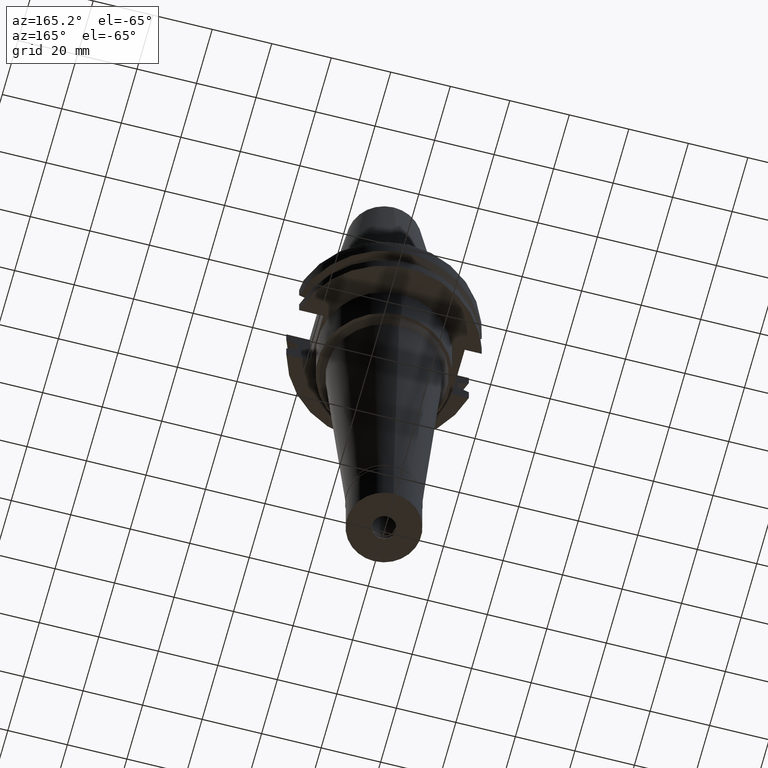
[diagram: clean part render]
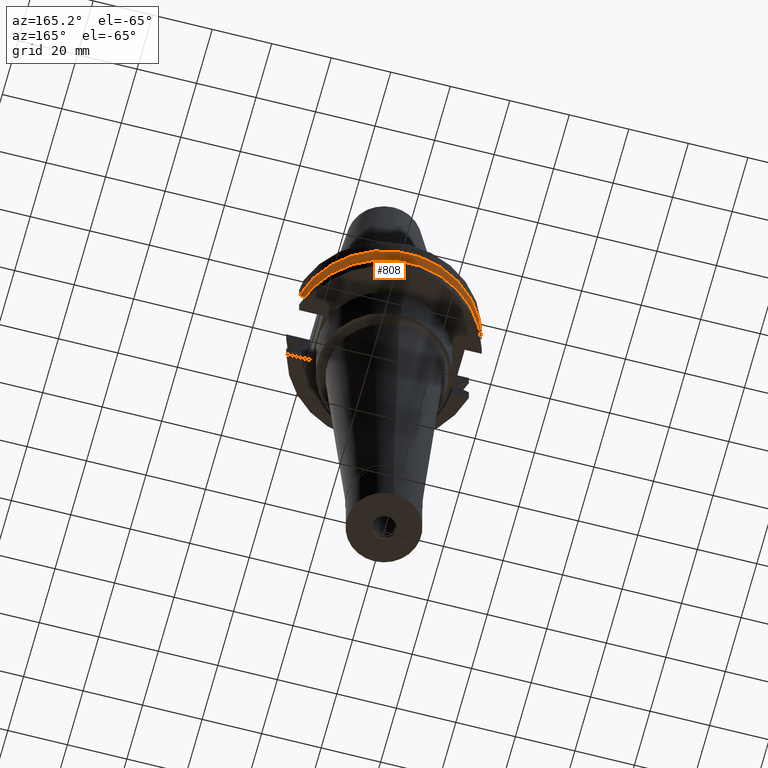
[diagram: same view with one face highlighted and labeled with its STEP entity id]
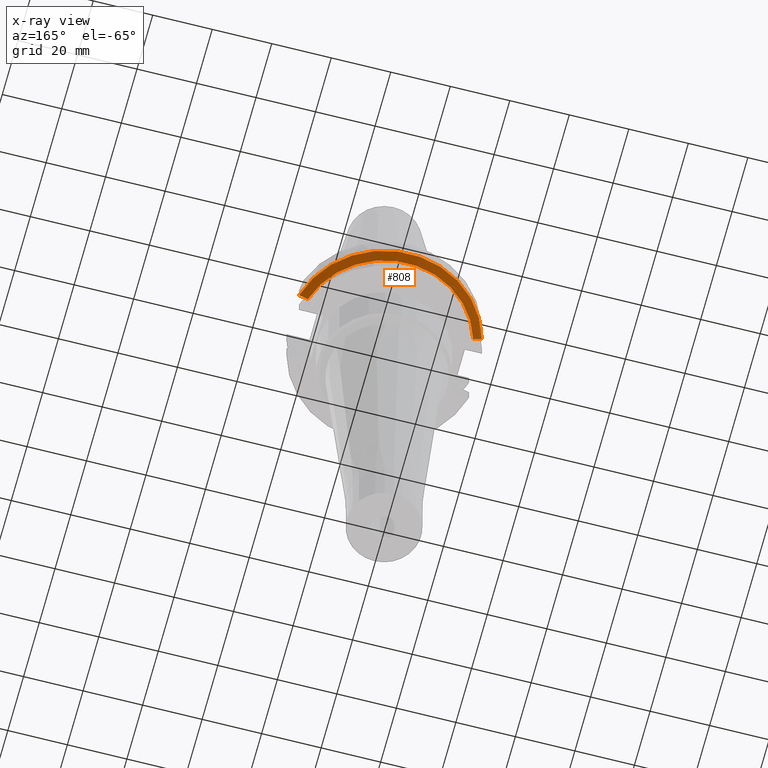
[diagram: x-ray of the same camera — body ghosted, the highlighted face saturated]
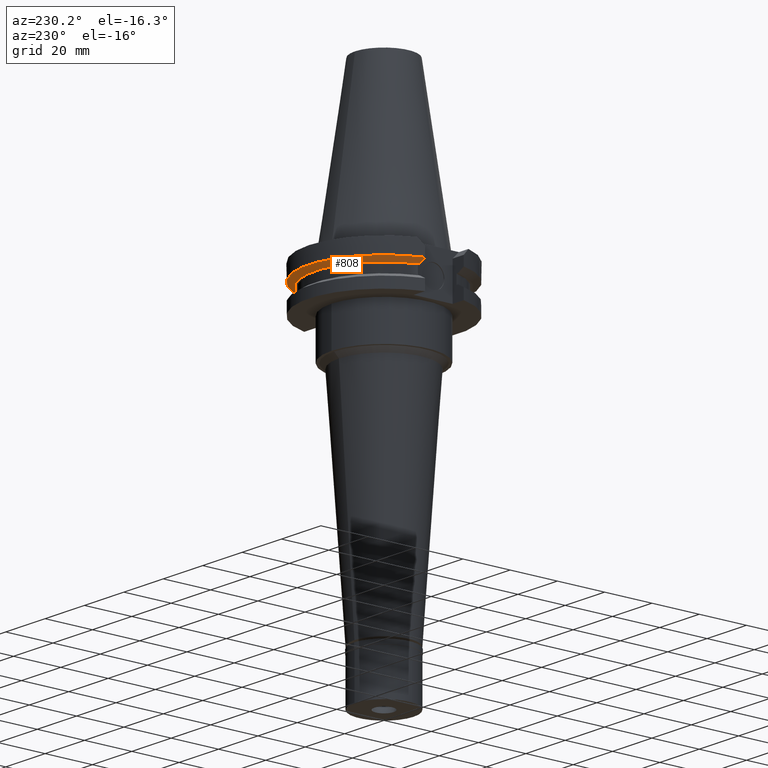
[diagram: same view with one face highlighted and labeled with its STEP entity id]
A machine part, auxiliary view. The second image highlights one B-rep face of the part: STEP entity #808.
The next image is the same camera in x-ray: the body ghosted, the highlighted face saturated — about 0% of this face is hidden behind the body in this view.
A second angle (auxiliary view) of the same face is appended — the face is thin or edge-on in the first view.
In plain terms, the highlighted conical surface has half-angle 60 deg.
Its self-contained STEP definition (entity closure, byte-faithful):
#94 = VERTEX_POINT ( 'NONE', #423 ) ;
#99 = CARTESIAN_POINT ( 'NONE',  ( -27.79398348482000003, 8.190000189175000500, -9.210000000000999165 ) ) ;
#217 = DIRECTION ( 'NONE',  ( 0.9661575315241073270, 0.2579527559055020958, 0.0000000000000000000 ) ) ;
#241 = AXIS2_PLACEMENT_3D ( 'NONE', #437, #2996, #1727 ) ;
#384 = CARTESIAN_POINT ( 'NONE',  ( 30.67550165918999738, 8.189999875296001264, -7.608164472357999308 ) ) ;
#423 = CARTESIAN_POINT ( 'NONE',  ( 30.67550165918999738, 8.189999875296001264, -7.608164472357999308 ) ) ;
#437 = CARTESIAN_POINT ( 'NONE',  ( 0.0000000000000000000, 1.121665249527999917E-14, -9.210000000002999343 ) ) ;
#480 = CARTESIAN_POINT ( 'NONE',  ( -30.67550146538999911, 8.190000601148000214, -7.608157985709000037 ) ) ;
#484 = CARTESIAN_POINT ( 'NONE',  ( 0.0000000000000000000, 1.121665249527999917E-14, -7.608163357944999206 ) ) ;
#504 = EDGE_CURVE ( 'NONE', #94, #1278, #2491, .T. ) ;
#566 = ORIENTED_EDGE ( 'NONE', *, *, #2459, .F. ) ;
#613 = VERTEX_POINT ( 'NONE', #2294 ) ;
#808 = ADVANCED_FACE ( 'NONE', ( #2861 ), #2260, .T. ) ;
#906 = CIRCLE ( 'NONE', #1721, 31.74999999999998579 ) ;
#1007 = CARTESIAN_POINT ( 'NONE',  ( -27.79398348482000003, 8.190000189175000500, -9.210000000000999165 ) ) ;
#1017 = DIRECTION ( 'NONE',  ( 0.0000000000000000000, 1.000000000000000000, 0.0000000000000000000 ) ) ;
#1071 = CARTESIAN_POINT ( 'NONE',  ( 27.79399588427999745, 8.189999365899998551, -9.210000000000999165 ) ) ;
#1107 = EDGE_CURVE ( 'NONE', #1278, #2412, #2378, .T. ) ;
#1278 = VERTEX_POINT ( 'NONE', #1071 ) ;
#1406 = CARTESIAN_POINT ( 'NONE',  ( 27.79399588427999745, 8.189999365899998551, -9.210000000000999165 ) ) ;
#1428 = ORIENTED_EDGE ( 'NONE', *, *, #504, .T. ) ;
#1520 = ORIENTED_EDGE ( 'NONE', *, *, #1107, .T. ) ;
#1538 = DIRECTION ( 'NONE',  ( 0.0000000000000000000, 0.0000000000000000000, 1.000000000000000000 ) ) ;
#1721 = AXIS2_PLACEMENT_3D ( 'NONE', #484, #1538, #217 ) ;
#1727 = DIRECTION ( 'NONE',  ( 0.0000000000000000000, 1.000000000000000000, 0.0000000000000000000 ) ) ;
#1916 = CARTESIAN_POINT ( 'NONE',  ( -28.71170642078588386, 8.190000378777559931, -8.701759819570268562 ) ) ;
#1949 = ORIENTED_EDGE ( 'NONE', *, *, #2937, .T. ) ;
#1976 = AXIS2_PLACEMENT_3D ( 'NONE', #2031, #2589, #1017 ) ;
#2031 = CARTESIAN_POINT ( 'NONE',  ( 0.0000000000000000000, 1.121665249527999917E-14, -8.409081678974001051 ) ) ;
#2037 = CARTESIAN_POINT ( 'NONE',  ( -29.67220490029862034, 8.190001201864017588, -8.167813437756086259 ) ) ;
#2144 = B_SPLINE_CURVE_WITH_KNOTS ( 'NONE', 3,
 ( #99, #1916, #2037, #480 ),
 .UNSPECIFIED., .F., .F.,
 ( 4, 4 ),
 ( 0.0000000000000000000, 1.000000000000000000 ),
 .UNSPECIFIED. ) ;
#2260 = CONICAL_SURFACE ( 'NONE', #1976, 30.36276877526999840, 1.047197551196400456 ) ;
#2294 = CARTESIAN_POINT ( 'NONE',  ( -30.67550146538999911, 8.190000601148000214, -7.608157985709000037 ) ) ;
#2378 = CIRCLE ( 'NONE', #241, 28.97553755052999946 ) ;
#2412 = VERTEX_POINT ( 'NONE', #1007 ) ;
#2459 = EDGE_CURVE ( 'NONE', #94, #613, #906, .T. ) ;
#2491 = B_SPLINE_CURVE_WITH_KNOTS ( 'NONE', 3,
 ( #384, #3004, #2498, #1406 ),
 .UNSPECIFIED., .F., .F.,
 ( 4, 4 ),
 ( 0.0000000000000000000, 1.000000000000000000 ),
 .UNSPECIFIED. ) ;
#2498 = CARTESIAN_POINT ( 'NONE',  ( 28.71170969509702786, 8.189998730403125649, -8.701758253033702317 ) ) ;
#2510 = EDGE_LOOP ( 'NONE', ( #1428, #1520, #1949, #566 ) ) ;
#2589 = DIRECTION ( 'NONE',  ( 0.0000000000000000000, 0.0000000000000000000, 1.000000000000000000 ) ) ;
#2861 = FACE_OUTER_BOUND ( 'NONE', #2510, .T. ) ;
#2937 = EDGE_CURVE ( 'NONE', #2412, #613, #2144, .T. ) ;
#2996 = DIRECTION ( 'NONE',  ( 0.0000000000000000000, 0.0000000000000000000, 1.000000000000000000 ) ) ;
#3004 = CARTESIAN_POINT ( 'NONE',  ( 29.67220411598517416, 8.189999750685286628, -8.167814094913365963 ) ) ;